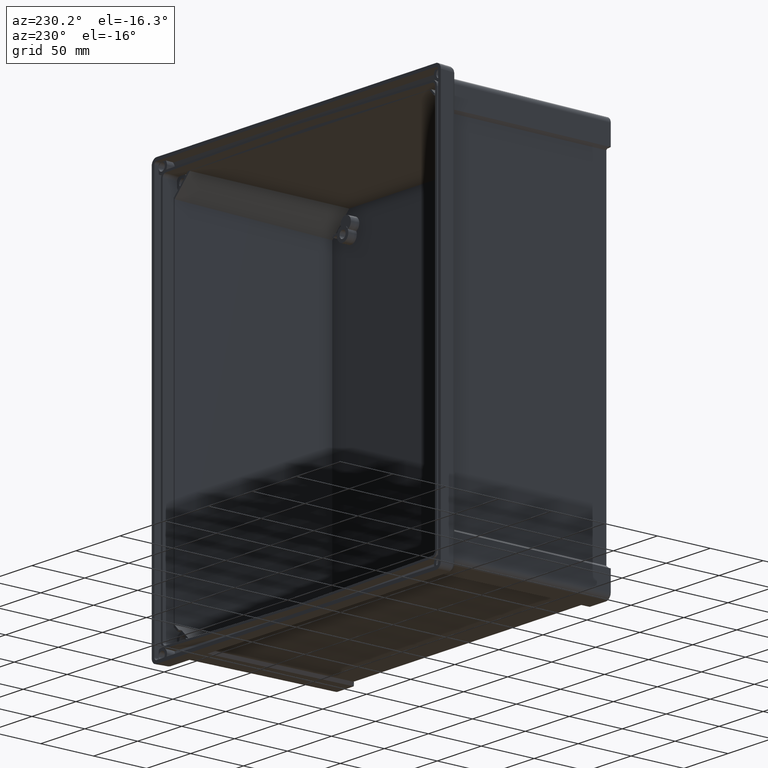
[diagram: clean part render]
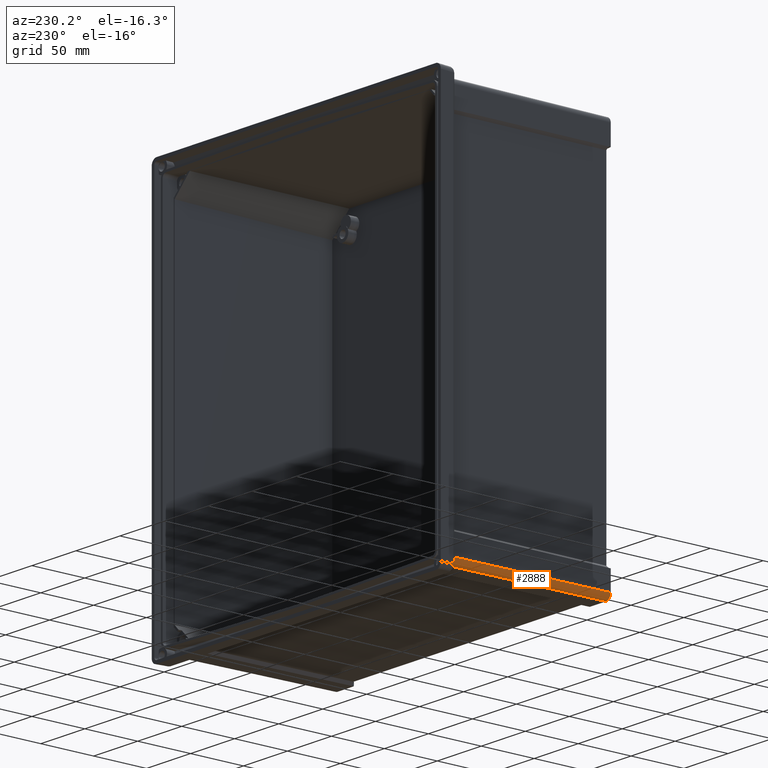
[diagram: same view with one face highlighted and labeled with its STEP entity id]
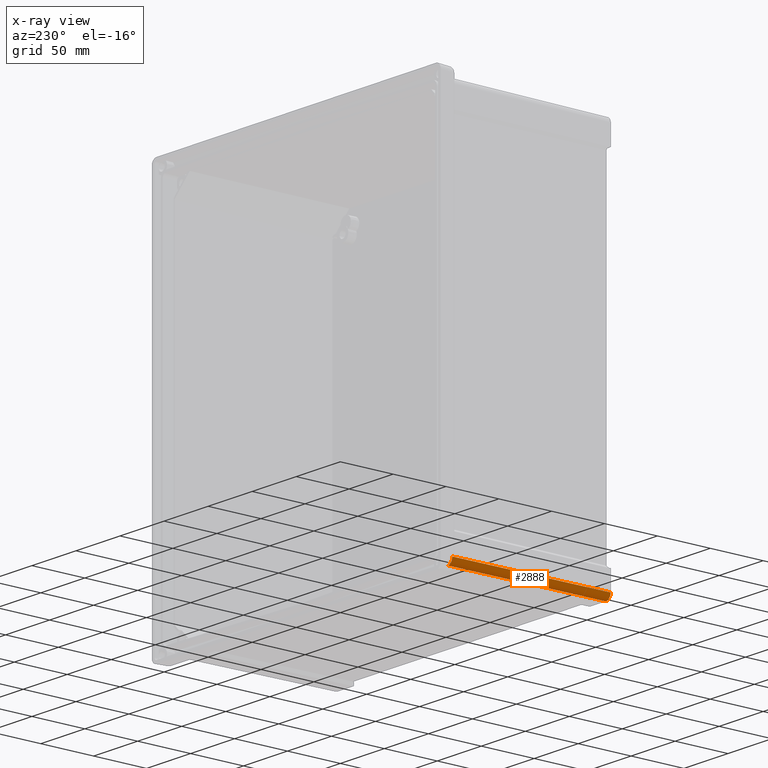
[diagram: x-ray of the same camera — body ghosted, the highlighted face saturated]
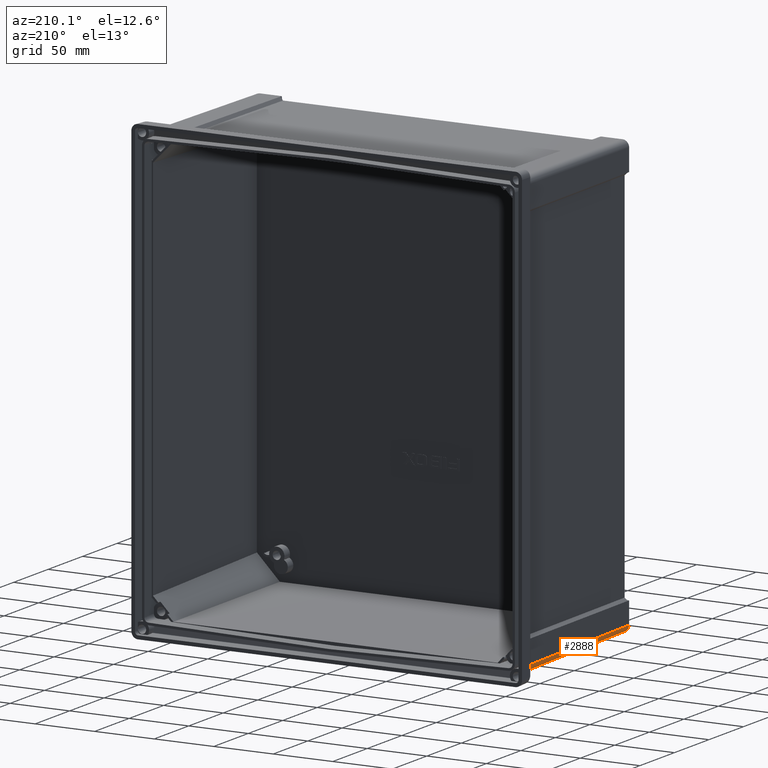
[diagram: same view with one face highlighted and labeled with its STEP entity id]
A machine part, auxiliary view. The second image highlights one B-rep face of the part: STEP entity #2888.
The next image is the same camera in x-ray: the body ghosted, the highlighted face saturated — about 0% of this face is hidden behind the body in this view.
A second angle (auxiliary view) of the same face is appended — the face is thin or edge-on in the first view.
In plain terms, the highlighted cylindrical surface (edge-blend (fillet) strip) has radius 5.5 mm, axis along (-0.0087, 0.9999, -0.0087).
Its self-contained STEP definition (entity closure, byte-faithful):
#206 = VECTOR ( 'NONE', #16429, 1000.000000000000100 ) ;
#854 = CARTESIAN_POINT ( 'NONE',  ( -154.7090354405370400, -15.34453948250120400, -184.4935409761795000 ) ) ;
#914 = CARTESIAN_POINT ( 'NONE',  ( -156.5080439010679900, -15.26487345355623000, -183.7767946074627300 ) ) ;
#1164 = B_SPLINE_CURVE_WITH_KNOTS ( 'NONE', 3,
 ( #14920, #8566, #12455, #12339, #4645, #16201, #13690, #914, #3327, #13634, #2219, #8515, #854, #4592, #13576, #5874 ),
 .UNSPECIFIED., .F., .F.,
 ( 4, 2, 2, 2, 2, 2, 2, 4 ),
 ( 0.0000000000000000000, 0.001657910544462178800, 0.002486865816693268100, 0.003315821088924357500, 0.004144776361155446900, 0.004973731633386536300, 0.005802686905617625600, 0.006631642177848715000 ),
 .UNSPECIFIED. ) ;
#2070 = CARTESIAN_POINT ( 'NONE',  ( -157.7846253229201600, -166.0000000000000300, -181.0065882853493200 ) ) ;
#2219 = CARTESIAN_POINT ( 'NONE',  ( -155.5103181799623300, -15.31279780251300700, -184.2646016290653700 ) ) ;
#2243 = CARTESIAN_POINT ( 'NONE',  ( -159.1027966142822000, -14.95253108361445800, -179.7666191054416600 ) ) ;
#2279 = CARTESIAN_POINT ( 'NONE',  ( -153.5871280626717800, -16.72397083262038100, -179.0871280626717200 ) ) ;
#2456 = CARTESIAN_POINT ( 'NONE',  ( -158.9837697056861700, -14.97783103405184900, -180.4192808448449900 ) ) ;
#2494 = VERTEX_POINT ( 'NONE', #3785 ) ;
#2814 = VERTEX_POINT ( 'NONE', #3934 ) ;
#2888 = ADVANCED_FACE ( 'NONE', ( #2900 ), #4096, .T. ) ;
#2900 = FACE_OUTER_BOUND ( 'NONE', #11253, .T. ) ;
#3066 = CARTESIAN_POINT ( 'NONE',  ( -159.1027966142822500, -14.95253108361444700, -179.1030060374292200 ) ) ;
#3218 = ORIENTED_EDGE ( 'NONE', *, *, #5184, .F. ) ;
#3295 = DIRECTION ( 'NONE',  ( -0.008726203243944187900, 0.9999238504775704900, -0.008726203243944236400 ) ) ;
#3327 = CARTESIAN_POINT ( 'NONE',  ( -156.2649642401771400, -15.27794677603982300, -183.9192568402652900 ) ) ;
#3645 = VERTEX_POINT ( 'NONE', #3066 ) ;
#3785 = CARTESIAN_POINT ( 'NONE',  ( -158.7495619430683900, -15.02761343079030500, -181.0399021363977300 ) ) ;
#3934 = CARTESIAN_POINT ( 'NONE',  ( -153.5991877945093100, -15.39005838567740100, -184.5989783713621900 ) ) ;
#4096 = CYLINDRICAL_SURFACE ( 'NONE', #10569, 5.499999999999988500 ) ;
#4194 = ORIENTED_EDGE ( 'NONE', *, *, #4296, .F. ) ;
#4296 = EDGE_CURVE ( 'NONE', #3645, #8256, #8013, .T. ) ;
#4592 = CARTESIAN_POINT ( 'NONE',  ( -154.1571827810825800, -15.36621354282352500, -184.5779413071038000 ) ) ;
#4645 = CARTESIAN_POINT ( 'NONE',  ( -157.5797916095910700, -15.18769032697374400, -182.9079504551823700 ) ) ;
#4742 =( BOUNDED_CURVE ( )  B_SPLINE_CURVE ( 3, ( #12242, #2070, #12348, #14883 ),
 .UNSPECIFIED., .F., .F. ) 
 B_SPLINE_CURVE_WITH_KNOTS ( ( 4, 4 ),
 ( 5.497825219993082200, 7.068545394366093900 ),
 .UNSPECIFIED. ) 
 CURVE ( )  GEOMETRIC_REPRESENTATION_ITEM ( )  RATIONAL_B_SPLINE_CURVE ( ( 1.000000000000000000, 0.8047558030806129000, 0.8047558030806129000, 1.000000000000000000 ) ) 
 REPRESENTATION_ITEM ( '' )  );
#5184 = EDGE_CURVE ( 'NONE', #8256, #7104, #4742, .T. ) ;
#5874 = CARTESIAN_POINT ( 'NONE',  ( -153.5991877945093100, -15.39005838567740100, -184.5989783713621900 ) ) ;
#7104 = VERTEX_POINT ( 'NONE', #15693 ) ;
#8013 = LINE ( 'NONE', #14010, #206 ) ;
#8256 = VERTEX_POINT ( 'NONE', #10051 ) ;
#8515 = CARTESIAN_POINT ( 'NONE',  ( -154.9823481171287400, -15.33410780333957000, -184.4300155334530600 ) ) ;
#8560 = EDGE_CURVE ( 'NONE', #2494, #2814, #1164, .T. ) ;
#8566 = CARTESIAN_POINT ( 'NONE',  ( -158.5521921074033600, -15.06956568443662700, -181.5629075268034900 ) ) ;
#9634 = EDGE_CURVE ( 'NONE', #7104, #2814, #10088, .T. ) ;
#10051 = CARTESIAN_POINT ( 'NONE',  ( -157.7846253229201900, -166.0000000000000000, -177.7848347460671900 ) ) ;
#10088 = LINE ( 'NONE', #15353, #13515 ) ;
#10208 = DIRECTION ( 'NONE',  ( -0.008726203243944186100, 0.9999238504775704900, -0.008726203243944238200 ) ) ;
#10328 = EDGE_CURVE ( 'NONE', #2494, #3645, #15320, .T. ) ;
#10569 = AXIS2_PLACEMENT_3D ( 'NONE', #2279, #3295, #16215 ) ;
#11253 = EDGE_LOOP ( 'NONE', ( #3218, #4194, #12627, #14504, #13838 ) ) ;
#11347 = CARTESIAN_POINT ( 'NONE',  ( -159.1027966142822500, -14.95253108361444700, -179.1030060374292200 ) ) ;
#12242 = CARTESIAN_POINT ( 'NONE',  ( -157.7846253229201900, -166.0000000000000000, -177.7848347460671900 ) ) ;
#12339 = CARTESIAN_POINT ( 'NONE',  ( -157.7685268792548400, -15.16943418786598100, -182.7008502950322700 ) ) ;
#12348 = CARTESIAN_POINT ( 'NONE',  ( -155.5065882853493800, -166.0000000000000300, -183.2846253229200800 ) ) ;
#12455 = CARTESIAN_POINT ( 'NONE',  ( -158.2818681655325600, -15.11170416701558700, -182.0431667358275800 ) ) ;
#12627 = ORIENTED_EDGE ( 'NONE', *, *, #10328, .F. ) ;
#13515 = VECTOR ( 'NONE', #10208, 1000.000000000000100 ) ;
#13576 = CARTESIAN_POINT ( 'NONE',  ( -153.8792019389983100, -15.37743845430061800, -184.5990885038348800 ) ) ;
#13634 = CARTESIAN_POINT ( 'NONE',  ( -155.7668683324970100, -15.30185149397052200, -184.1624874947331700 ) ) ;
#13690 = CARTESIAN_POINT ( 'NONE',  ( -156.9637972146182700, -15.23649883518837600, -183.4609568706500500 ) ) ;
#13838 = ORIENTED_EDGE ( 'NONE', *, *, #9634, .F. ) ;
#14010 = CARTESIAN_POINT ( 'NONE',  ( -159.1120809855829600, -13.88864750896569200, -179.1122904087299300 ) ) ;
#14504 = ORIENTED_EDGE ( 'NONE', *, *, #8560, .T. ) ;
#14883 = CARTESIAN_POINT ( 'NONE',  ( -152.2848347460672200, -166.0000000000000000, -183.2846253229200500 ) ) ;
#14920 = CARTESIAN_POINT ( 'NONE',  ( -158.7495619430683900, -15.02761343079030500, -181.0399021363977300 ) ) ;
#15257 = CARTESIAN_POINT ( 'NONE',  ( -158.7495619430683900, -15.02761343079030500, -181.0399021363977300 ) ) ;
#15320 =( BOUNDED_CURVE ( )  B_SPLINE_CURVE ( 3, ( #15257, #2456, #2243, #11347 ),
 .UNSPECIFIED., .F., .F. ) 
 B_SPLINE_CURVE_WITH_KNOTS ( ( 4, 4 ),
 ( 5.962527109710619800, 6.322526357496618000 ),
 .UNSPECIFIED. ) 
 CURVE ( )  GEOMETRIC_REPRESENTATION_ITEM ( )  RATIONAL_B_SPLINE_CURVE ( ( 1.000000000000000000, 0.9892291734148851400, 0.9892291734148851400, 1.000000000000000000 ) ) 
 REPRESENTATION_ITEM ( '' )  );
#15353 = CARTESIAN_POINT ( 'NONE',  ( -153.5871280626717800, -16.77196677786143300, -184.5869186395246400 ) ) ;
#15693 = CARTESIAN_POINT ( 'NONE',  ( -152.2848347460672200, -166.0000000000000000, -183.2846253229200500 ) ) ;
#16201 = CARTESIAN_POINT ( 'NONE',  ( -157.1780896638972300, -15.22114413056014300, -183.2871133931728300 ) ) ;
#16215 = DIRECTION ( 'NONE',  ( 0.0000000000000000000, 0.008726535498374132400, 0.9999619230641713100 ) ) ;
#16429 = DIRECTION ( 'NONE',  ( 0.008726203243944187900, -0.9999238504775704900, 0.008726203243944236400 ) ) ;